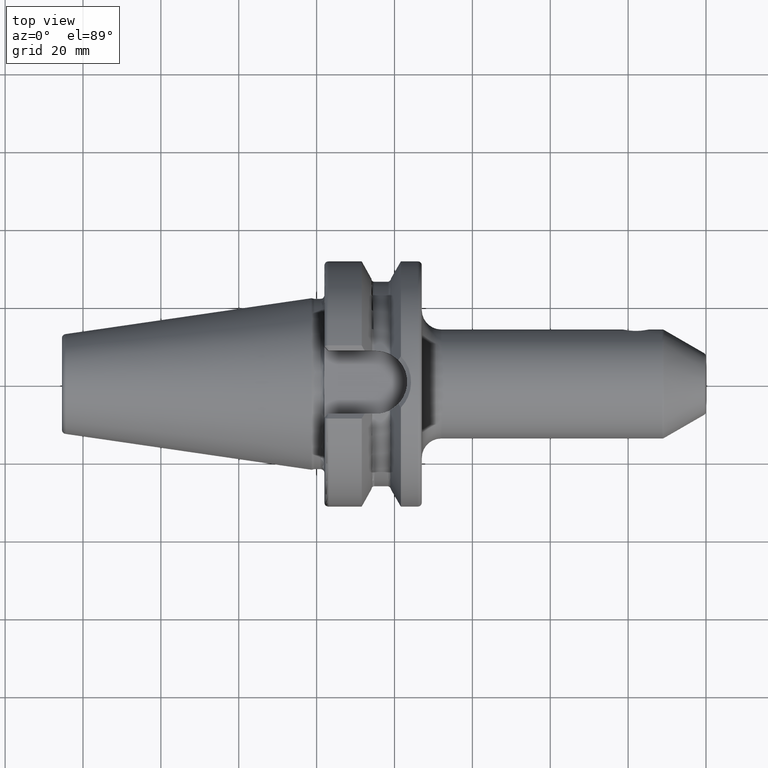
[diagram: clean part render]
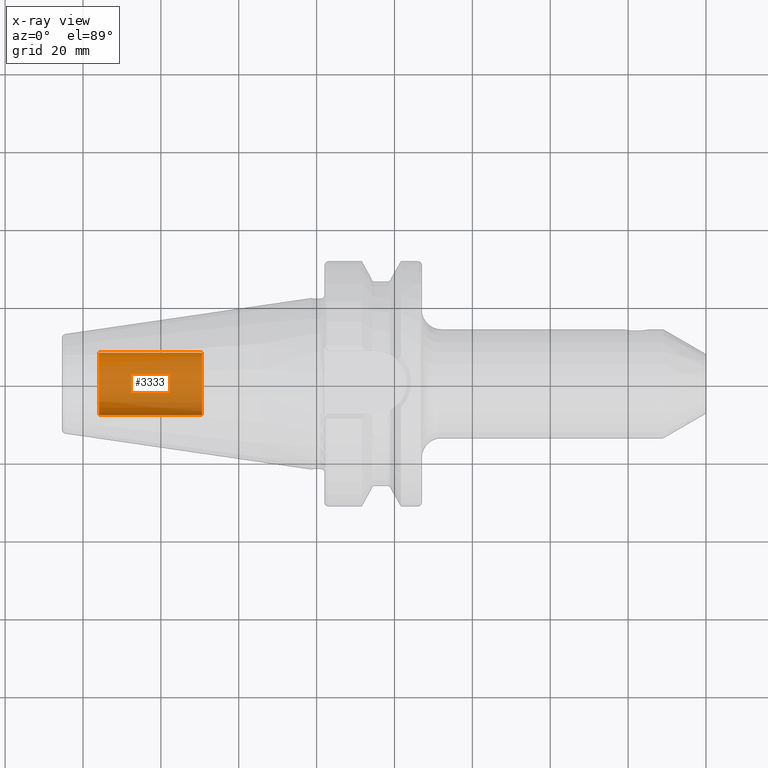
[diagram: x-ray — body ghosted, one internal face saturated and labeled with its STEP entity id]
A machine part, top view, then the same camera in x-ray: the body is ghosted and one INTERNAL B-rep face — a face not visible from any outside direction — is saturated and labeled: STEP entity #3333.
In plain terms, the highlighted cylindrical surface (edge-blend (fillet) strip) has radius 8.0028 mm, axis along (1, 0, 0).
Its self-contained STEP definition (entity closure, byte-faithful):
#3268=CARTESIAN_POINT('',(-5.595E1,0.E0,0.E0));
#3269=DIRECTION('',(-1.E0,0.E0,0.E0));
#3270=DIRECTION('',(0.E0,1.E0,0.E0));
#3271=AXIS2_PLACEMENT_3D('',#3268,#3269,#3270);
#3273=DIRECTION('',(1.E0,0.E0,0.E0));
#3274=VECTOR('',#3273,2.655E1);
#3275=CARTESIAN_POINT('',(-5.595E1,-8.00275E0,0.E0));
#3276=LINE('',#3275,#3274);
#3282=DIRECTION('',(1.E0,0.E0,0.E0));
#3283=VECTOR('',#3282,2.655E1);
#3284=CARTESIAN_POINT('',(-5.595E1,8.00275E0,0.E0));
#3285=LINE('',#3284,#3283);
#3291=CARTESIAN_POINT('',(-2.94E1,0.E0,0.E0));
#3292=DIRECTION('',(1.E0,0.E0,0.E0));
#3293=DIRECTION('',(0.E0,-1.E0,0.E0));
#3294=AXIS2_PLACEMENT_3D('',#3291,#3292,#3293);
#3306=CARTESIAN_POINT('',(-5.595E1,8.00275E0,0.E0));
#3307=CARTESIAN_POINT('',(-5.595E1,-8.00275E0,0.E0));
#3308=VERTEX_POINT('',#3306);
#3309=VERTEX_POINT('',#3307);
#3310=CARTESIAN_POINT('',(-2.94E1,8.00275E0,0.E0));
#3311=CARTESIAN_POINT('',(-2.94E1,-8.00275E0,0.E0));
#3312=VERTEX_POINT('',#3310);
#3313=VERTEX_POINT('',#3311);
#3318=CARTESIAN_POINT('',(-5.595E1,0.E0,0.E0));
#3319=DIRECTION('',(1.E0,0.E0,0.E0));
#3320=DIRECTION('',(0.E0,1.E0,0.E0));
#3321=AXIS2_PLACEMENT_3D('',#3318,#3319,#3320);
#3322=CYLINDRICAL_SURFACE('',#3321,8.00275E0);
#3324=ORIENTED_EDGE('',*,*,#3323,.T.);
#3326=ORIENTED_EDGE('',*,*,#3325,.T.);
#3328=ORIENTED_EDGE('',*,*,#3327,.T.);
#3330=ORIENTED_EDGE('',*,*,#3329,.F.);
#3331=EDGE_LOOP('',(#3324,#3326,#3328,#3330));
#3332=FACE_OUTER_BOUND('',#3331,.F.);
#3333=ADVANCED_FACE('',(#3332),#3322,.T.);
#3272=CIRCLE('',#3271,8.00275E0);
#3295=CIRCLE('',#3294,8.00275E0);
#3323=EDGE_CURVE('',#3308,#3309,#3272,.T.);
#3325=EDGE_CURVE('',#3309,#3313,#3276,.T.);
#3327=EDGE_CURVE('',#3313,#3312,#3295,.T.);
#3329=EDGE_CURVE('',#3308,#3312,#3285,.T.);